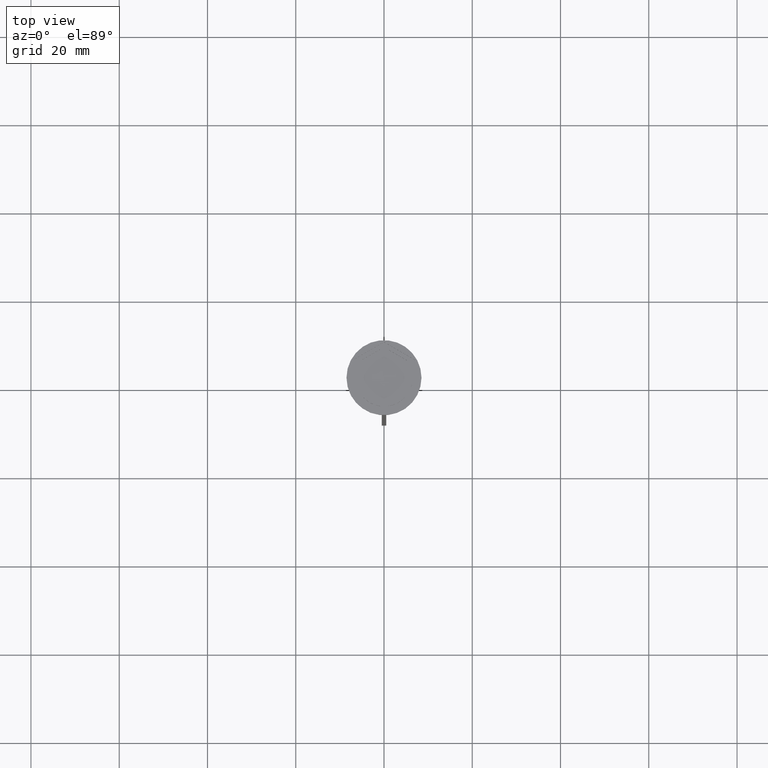
[diagram: clean part render]
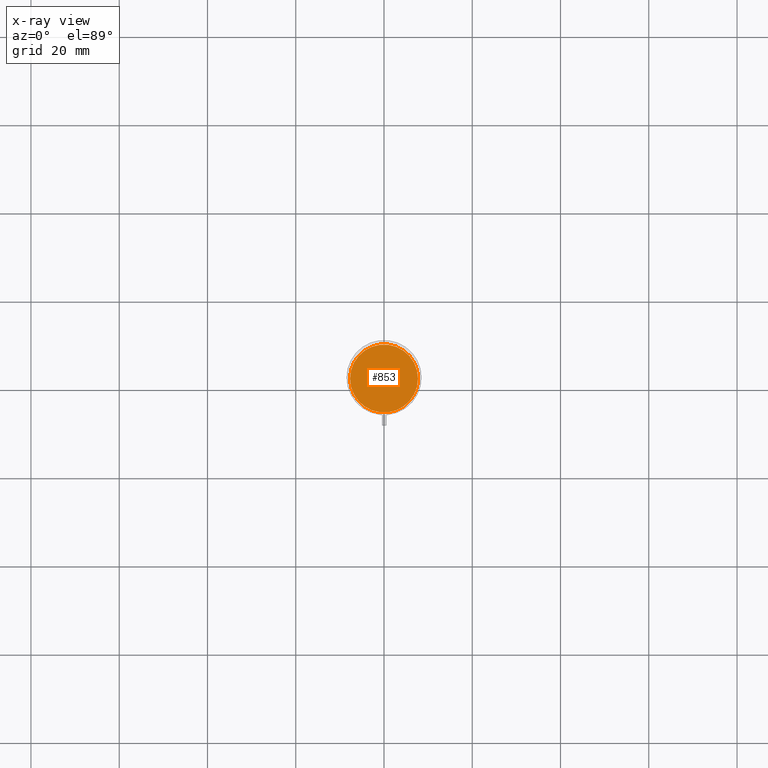
[diagram: x-ray — body ghosted, one internal face saturated and labeled with its STEP entity id]
A machine part, top view, then the same camera in x-ray: the body is ghosted and one INTERNAL B-rep face — a face not visible from any outside direction — is saturated and labeled: STEP entity #853.
In plain terms, the highlighted planar face has unit normal (0, 0, -1).
Its self-contained STEP definition (entity closure, byte-faithful):
#41 = DIRECTION ( 'NONE',  ( -1.000000000000000000, 0.000000000000000000, 0.000000000000000000 ) ) ;
#177 = CIRCLE ( 'NONE', #1085, 7.700000000000001954 ) ;
#214 = CIRCLE ( 'NONE', #1198, 7.700000000000001954 ) ;
#355 = EDGE_CURVE ( 'NONE', #2488, #1989, #214, .T. ) ;
#626 = EDGE_LOOP ( 'NONE', ( #1958, #2116 ) ) ;
#703 = CARTESIAN_POINT ( 'NONE',  ( 7.700000000000001954, 9.613477373306725302E-16, -12.00000000000000000 ) ) ;
#704 = DIRECTION ( 'NONE',  ( 0.000000000000000000, 0.000000000000000000, -1.000000000000000000 ) ) ;
#853 = ADVANCED_FACE ( 'NONE', ( #1849 ), #1036, .F. ) ;
#935 = DIRECTION ( 'NONE',  ( -1.000000000000000000, 0.000000000000000000, 0.000000000000000000 ) ) ;
#1036 = PLANE ( 'NONE',  #2379 ) ;
#1085 = AXIS2_PLACEMENT_3D ( 'NONE', #1900, #1319, #935 ) ;
#1198 = AXIS2_PLACEMENT_3D ( 'NONE', #1954, #1993, #41 ) ;
#1319 = DIRECTION ( 'NONE',  ( -0.000000000000000000, -0.000000000000000000, 1.000000000000000000 ) ) ;
#1385 = EDGE_CURVE ( 'NONE', #1989, #2488, #177, .T. ) ;
#1452 = CARTESIAN_POINT ( 'NONE',  ( 0.000000000000000000, 0.000000000000000000, -12.00000000000000000 ) ) ;
#1849 = FACE_OUTER_BOUND ( 'NONE', #626, .T. ) ;
#1850 = CARTESIAN_POINT ( 'NONE',  ( -7.700000000000001954, 0.000000000000000000, -12.00000000000000000 ) ) ;
#1866 = DIRECTION ( 'NONE',  ( -1.000000000000000000, 0.000000000000000000, -0.000000000000000000 ) ) ;
#1900 = CARTESIAN_POINT ( 'NONE',  ( 0.000000000000000000, 0.000000000000000000, -12.00000000000000000 ) ) ;
#1954 = CARTESIAN_POINT ( 'NONE',  ( 0.000000000000000000, 0.000000000000000000, -12.00000000000000000 ) ) ;
#1958 = ORIENTED_EDGE ( 'NONE', *, *, #1385, .T. ) ;
#1989 = VERTEX_POINT ( 'NONE', #1850 ) ;
#1993 = DIRECTION ( 'NONE',  ( -0.000000000000000000, -0.000000000000000000, 1.000000000000000000 ) ) ;
#2116 = ORIENTED_EDGE ( 'NONE', *, *, #355, .T. ) ;
#2379 = AXIS2_PLACEMENT_3D ( 'NONE', #1452, #704, #1866 ) ;
#2488 = VERTEX_POINT ( 'NONE', #703 ) ;